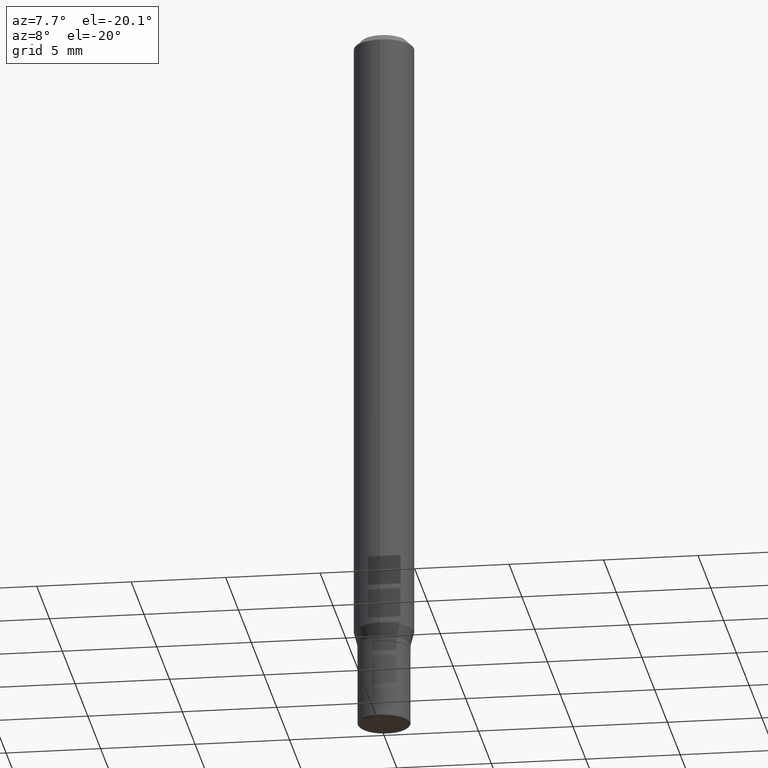
[diagram: clean part render]
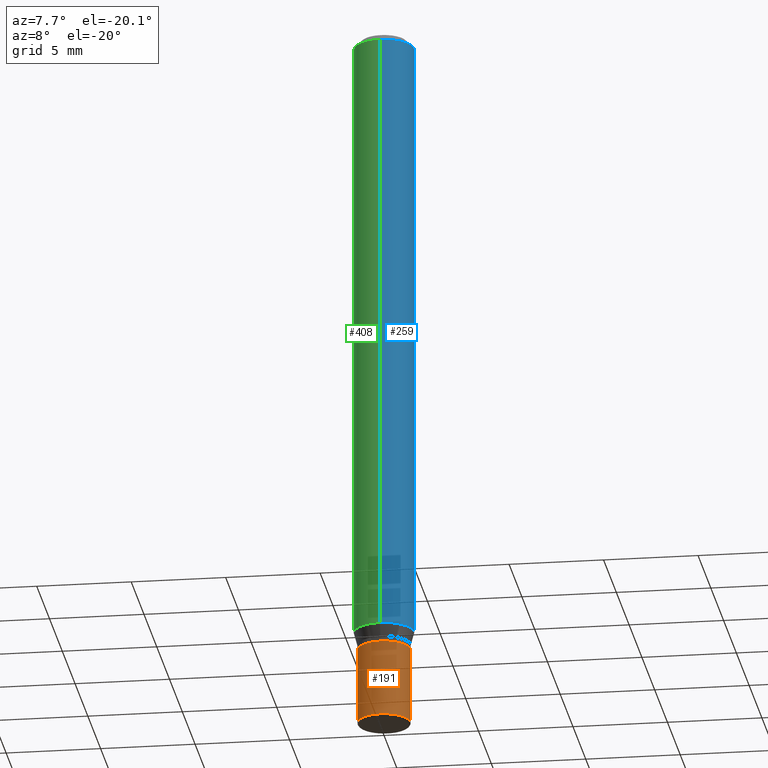
[diagram: same view with three faces highlighted in distinct colors, each labeled with its STEP entity id]
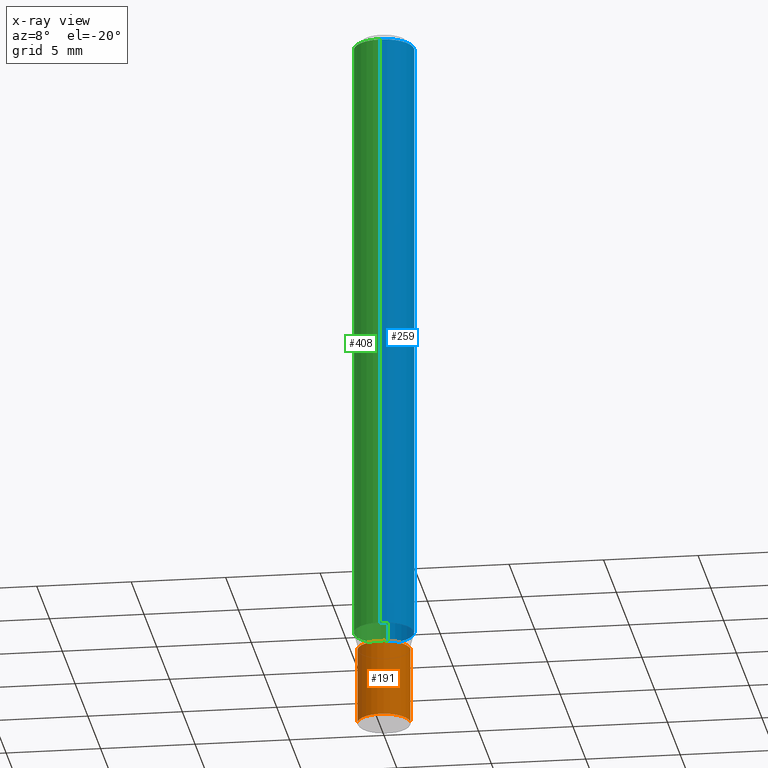
[diagram: x-ray of the same camera — body ghosted, the three highlighted faces saturated]
A machine part, auxiliary view with three faces highlighted in distinct colors.
The next image is the same camera in x-ray (body ghosted, the three faces saturated) — at least one of them is partly hidden behind the body in this view.
Their STEP definitions:

[orange] entity #191 — the highlighted cylindrical surface (edge-blend (fillet) strip) has radius 1.397 mm, axis along (-0, 0, 1).
#61 = DIRECTION ( 'NONE',  ( -2.445468806185136597E-29, 3.491481338843145583E-15, 1.000000000000000000 ) ) ;
#62 = DIRECTION ( 'NONE',  ( -2.445468806185136877E-29, 3.491481338843145188E-15, 1.000000000000000000 ) ) ;
#66 = EDGE_CURVE ( 'NONE', #184, #366, #253, .T. ) ;
#68 = CARTESIAN_POINT ( 'NONE',  ( 0.000000000000000000, 0.000000000000000000, 0.000000000000000000 ) ) ;
#77 = DIRECTION ( 'NONE',  ( 1.000000000000000000, -6.982962677686274599E-15, 0.000000000000000000 ) ) ;
#79 = VERTEX_POINT ( 'NONE', #499 ) ;
#80 = CARTESIAN_POINT ( 'NONE',  ( 0.05500000000000000028, -5.045190534628344107E-15, -1.335000000000000187 ) ) ;
#88 = CARTESIAN_POINT ( 'NONE',  ( -0.05500000000000009742, 3.907985046680557945E-16, -2.705414299640202916E-30 ) ) ;
#90 = CARTESIAN_POINT ( 'NONE',  ( -0.05500000000000000028, -4.549647589794996077E-15, -1.335000000000000187 ) ) ;
#92 = VERTEX_POINT ( 'NONE', #139 ) ;
#116 = ORIENTED_EDGE ( 'NONE', *, *, #66, .F. ) ;
#119 = LINE ( 'NONE', #88, #167 ) ;
#139 = CARTESIAN_POINT ( 'NONE',  ( 0.05500000000000018069, -5.603827548843249703E-15, -1.495000000000000107 ) ) ;
#161 = EDGE_LOOP ( 'NONE', ( #282, #321, #347, #116 ) ) ;
#167 = VECTOR ( 'NONE', #515, 39.37007874015748143 ) ;
#176 = AXIS2_PLACEMENT_3D ( 'NONE', #68, #61, #359 ) ;
#184 = VERTEX_POINT ( 'NONE', #90 ) ;
#187 = CARTESIAN_POINT ( 'NONE',  ( 3.264700856257157760E-29, -4.661127587355599122E-15, -1.335000000000000187 ) ) ;
#191 = ADVANCED_FACE ( 'NONE', ( #360 ), #431, .T. ) ;
#250 = CARTESIAN_POINT ( 'NONE',  ( 3.655975865246779122E-29, -5.219764601570503141E-15, -1.495000000000000107 ) ) ;
#253 = CIRCLE ( 'NONE', #449, 0.05500000000000000028 ) ;
#282 = ORIENTED_EDGE ( 'NONE', *, *, #382, .F. ) ;
#286 = DIRECTION ( 'NONE',  ( -2.445468806185136597E-29, 3.491481338843145583E-15, 1.000000000000000000 ) ) ;
#314 = DIRECTION ( 'NONE',  ( -2.445468806185136597E-29, 3.491481338843145583E-15, 1.000000000000000000 ) ) ;
#321 = ORIENTED_EDGE ( 'NONE', *, *, #393, .T. ) ;
#329 = EDGE_CURVE ( 'NONE', #92, #366, #351, .T. ) ;
#343 = AXIS2_PLACEMENT_3D ( 'NONE', #250, #314, #77 ) ;
#347 = ORIENTED_EDGE ( 'NONE', *, *, #329, .T. ) ;
#351 = LINE ( 'NONE', #398, #497 ) ;
#359 = DIRECTION ( 'NONE',  ( 1.000000000000000000, -6.982962677686266711E-15, 4.876176775795935793E-29 ) ) ;
#360 = FACE_OUTER_BOUND ( 'NONE', #161, .T. ) ;
#366 = VERTEX_POINT ( 'NONE', #80 ) ;
#381 = DIRECTION ( 'NONE',  ( 1.000000000000000000, -6.982962677686262766E-15, 0.000000000000000000 ) ) ;
#382 = EDGE_CURVE ( 'NONE', #79, #184, #119, .T. ) ;
#393 = EDGE_CURVE ( 'NONE', #79, #92, #482, .T. ) ;
#398 = CARTESIAN_POINT ( 'NONE',  ( 0.05500000000000009742, -3.840629472727453298E-16, 2.681897226687769380E-30 ) ) ;
#431 = CYLINDRICAL_SURFACE ( 'NONE', #176, 0.05500000000000009742 ) ;
#449 = AXIS2_PLACEMENT_3D ( 'NONE', #187, #286, #381 ) ;
#482 = CIRCLE ( 'NONE', #343, 0.05500000000000018069 ) ;
#497 = VECTOR ( 'NONE', #62, 39.37007874015748143 ) ;
#499 = CARTESIAN_POINT ( 'NONE',  ( -0.05500000000000018069, -4.549647589794995288E-15, -1.495000000000000107 ) ) ;
#515 = DIRECTION ( 'NONE',  ( -2.445468806185136877E-29, 3.491481338843145188E-15, 1.000000000000000000 ) ) ;

[blue] entity #259 — the highlighted cylindrical surface (edge-blend (fillet) strip) has radius 1.5875 mm, axis along (-0, 0, 1).
#1 = AXIS2_PLACEMENT_3D ( 'NONE', #233, #202, #466 ) ;
#32 = VERTEX_POINT ( 'NONE', #185 ) ;
#33 = DIRECTION ( 'NONE',  ( -2.445464214186550861E-29, 3.491487914846480807E-15, 1.000000000000000000 ) ) ;
#44 = ORIENTED_EDGE ( 'NONE', *, *, #317, .T. ) ;
#91 = CARTESIAN_POINT ( 'NONE',  ( 4.440892098500945650E-16, 0.06249999999999995143, -0.01499999999999992138 ) ) ;
#112 = DIRECTION ( 'NONE',  ( -6.982962677686265922E-15, -1.000000000000000000, 4.370956789862821150E-15 ) ) ;
#141 = ORIENTED_EDGE ( 'NONE', *, *, #495, .F. ) ;
#144 = CYLINDRICAL_SURFACE ( 'NONE', #1, 0.06250000000000000000 ) ;
#185 = CARTESIAN_POINT ( 'NONE',  ( 4.440892098500943678E-16, 0.06249999999999548972, -1.297009618943234521 ) ) ;
#201 = CARTESIAN_POINT ( 'NONE',  ( 3.171790608581413827E-29, -4.528493409979942154E-15, -1.297009618943234077 ) ) ;
#202 = DIRECTION ( 'NONE',  ( -2.445464214186550861E-29, 3.491487914846480807E-15, 1.000000000000000000 ) ) ;
#203 = EDGE_CURVE ( 'NONE', #326, #456, #276, .T. ) ;
#213 = AXIS2_PLACEMENT_3D ( 'NONE', #201, #33, #112 ) ;
#228 = LINE ( 'NONE', #471, #238 ) ;
#232 = FACE_OUTER_BOUND ( 'NONE', #237, .T. ) ;
#233 = CARTESIAN_POINT ( 'NONE',  ( 0.000000000000000000, 0.000000000000000000, 0.000000000000000000 ) ) ;
#237 = EDGE_LOOP ( 'NONE', ( #44, #380, #350, #141 ) ) ;
#238 = VECTOR ( 'NONE', #512, 39.37007874015748143 ) ;
#258 = LINE ( 'NONE', #349, #395 ) ;
#259 = ADVANCED_FACE ( 'NONE', ( #232 ), #144, .T. ) ;
#261 = DIRECTION ( 'NONE',  ( -2.445464214186550861E-29, 3.491487914846480807E-15, 1.000000000000000000 ) ) ;
#264 = EDGE_CURVE ( 'NONE', #32, #456, #228, .T. ) ;
#265 = CARTESIAN_POINT ( 'NONE',  ( -4.364351673553912750E-16, -0.06250000000000005551, -0.01499999999999948597 ) ) ;
#276 = CIRCLE ( 'NONE', #295, 0.06250000000000000000 ) ;
#295 = AXIS2_PLACEMENT_3D ( 'NONE', #305, #311, #433 ) ;
#305 = CARTESIAN_POINT ( 'NONE',  ( 3.668196321279753512E-31, -5.237231872269617697E-17, -0.01499999999999970281 ) ) ;
#311 = DIRECTION ( 'NONE',  ( -2.445464214186550861E-29, 3.491487914846480807E-15, 1.000000000000000000 ) ) ;
#317 = EDGE_CURVE ( 'NONE', #494, #32, #486, .T. ) ;
#326 = VERTEX_POINT ( 'NONE', #265 ) ;
#349 = CARTESIAN_POINT ( 'NONE',  ( -4.364351673553916201E-16, -0.06250000000000000000, 2.182179946779050504E-16 ) ) ;
#350 = ORIENTED_EDGE ( 'NONE', *, *, #203, .F. ) ;
#380 = ORIENTED_EDGE ( 'NONE', *, *, #264, .T. ) ;
#395 = VECTOR ( 'NONE', #261, 39.37007874015748143 ) ;
#429 = CARTESIAN_POINT ( 'NONE',  ( -4.364351673553597205E-16, -0.06250000000000451028, -1.297009618943233855 ) ) ;
#433 = DIRECTION ( 'NONE',  ( -6.982962677686265922E-15, -1.000000000000000000, 3.483106191921935554E-15 ) ) ;
#456 = VERTEX_POINT ( 'NONE', #91 ) ;
#466 = DIRECTION ( 'NONE',  ( -6.982962677686265922E-15, -1.000000000000000000, 3.491487914846480807E-15 ) ) ;
#471 = CARTESIAN_POINT ( 'NONE',  ( 4.440892098500625669E-16, 0.06250000000000000000, -2.182179946779050504E-16 ) ) ;
#486 = CIRCLE ( 'NONE', #213, 0.06250000000000000000 ) ;
#494 = VERTEX_POINT ( 'NONE', #429 ) ;
#495 = EDGE_CURVE ( 'NONE', #494, #326, #258, .T. ) ;
#512 = DIRECTION ( 'NONE',  ( -2.445464214186550861E-29, 3.491487914846480807E-15, 1.000000000000000000 ) ) ;

[green] entity #408 — the highlighted cylindrical surface (edge-blend (fillet) strip) has radius 1.5875 mm, axis along (-0, 0, 1).
#4 = CYLINDRICAL_SURFACE ( 'NONE', #514, 0.06250000000000000000 ) ;
#23 = CARTESIAN_POINT ( 'NONE',  ( 3.668196321279753512E-31, -5.237231872269617697E-17, -0.01499999999999970281 ) ) ;
#32 = VERTEX_POINT ( 'NONE', #185 ) ;
#91 = CARTESIAN_POINT ( 'NONE',  ( 4.440892098500945650E-16, 0.06249999999999995143, -0.01499999999999992138 ) ) ;
#105 = DIRECTION ( 'NONE',  ( -2.445464214186550861E-29, 3.491487914846480807E-15, 1.000000000000000000 ) ) ;
#130 = ORIENTED_EDGE ( 'NONE', *, *, #264, .F. ) ;
#185 = CARTESIAN_POINT ( 'NONE',  ( 4.440892098500943678E-16, 0.06249999999999548972, -1.297009618943234521 ) ) ;
#194 = DIRECTION ( 'NONE',  ( -6.982962677686265922E-15, -1.000000000000000000, 3.483106191921935554E-15 ) ) ;
#226 = AXIS2_PLACEMENT_3D ( 'NONE', #252, #421, #400 ) ;
#228 = LINE ( 'NONE', #471, #238 ) ;
#238 = VECTOR ( 'NONE', #512, 39.37007874015748143 ) ;
#241 = DIRECTION ( 'NONE',  ( -2.445464214186550861E-29, 3.491487914846480807E-15, 1.000000000000000000 ) ) ;
#252 = CARTESIAN_POINT ( 'NONE',  ( 3.171790608581413827E-29, -4.528493409979942154E-15, -1.297009618943234077 ) ) ;
#258 = LINE ( 'NONE', #349, #395 ) ;
#261 = DIRECTION ( 'NONE',  ( -2.445464214186550861E-29, 3.491487914846480807E-15, 1.000000000000000000 ) ) ;
#263 = CIRCLE ( 'NONE', #304, 0.06250000000000000000 ) ;
#264 = EDGE_CURVE ( 'NONE', #32, #456, #228, .T. ) ;
#265 = CARTESIAN_POINT ( 'NONE',  ( -4.364351673553912750E-16, -0.06250000000000005551, -0.01499999999999948597 ) ) ;
#284 = EDGE_CURVE ( 'NONE', #456, #326, #263, .T. ) ;
#304 = AXIS2_PLACEMENT_3D ( 'NONE', #23, #105, #194 ) ;
#315 = DIRECTION ( 'NONE',  ( -6.982962677686265922E-15, -1.000000000000000000, 3.491487914846480807E-15 ) ) ;
#326 = VERTEX_POINT ( 'NONE', #265 ) ;
#349 = CARTESIAN_POINT ( 'NONE',  ( -4.364351673553916201E-16, -0.06250000000000000000, 2.182179946779050504E-16 ) ) ;
#365 = CARTESIAN_POINT ( 'NONE',  ( 0.000000000000000000, 0.000000000000000000, 0.000000000000000000 ) ) ;
#389 = CIRCLE ( 'NONE', #226, 0.06250000000000000000 ) ;
#395 = VECTOR ( 'NONE', #261, 39.37007874015748143 ) ;
#400 = DIRECTION ( 'NONE',  ( -6.982962677686265922E-15, -1.000000000000000000, 4.370956789862821150E-15 ) ) ;
#408 = ADVANCED_FACE ( 'NONE', ( #444 ), #4, .T. ) ;
#421 = DIRECTION ( 'NONE',  ( -2.445464214186550861E-29, 3.491487914846480807E-15, 1.000000000000000000 ) ) ;
#429 = CARTESIAN_POINT ( 'NONE',  ( -4.364351673553597205E-16, -0.06250000000000451028, -1.297009618943233855 ) ) ;
#444 = FACE_OUTER_BOUND ( 'NONE', #491, .T. ) ;
#447 = ORIENTED_EDGE ( 'NONE', *, *, #495, .T. ) ;
#456 = VERTEX_POINT ( 'NONE', #91 ) ;
#461 = EDGE_CURVE ( 'NONE', #32, #494, #389, .T. ) ;
#471 = CARTESIAN_POINT ( 'NONE',  ( 4.440892098500625669E-16, 0.06250000000000000000, -2.182179946779050504E-16 ) ) ;
#488 = ORIENTED_EDGE ( 'NONE', *, *, #461, .T. ) ;
#491 = EDGE_LOOP ( 'NONE', ( #130, #488, #447, #507 ) ) ;
#494 = VERTEX_POINT ( 'NONE', #429 ) ;
#495 = EDGE_CURVE ( 'NONE', #494, #326, #258, .T. ) ;
#507 = ORIENTED_EDGE ( 'NONE', *, *, #284, .F. ) ;
#512 = DIRECTION ( 'NONE',  ( -2.445464214186550861E-29, 3.491487914846480807E-15, 1.000000000000000000 ) ) ;
#514 = AXIS2_PLACEMENT_3D ( 'NONE', #365, #241, #315 ) ;